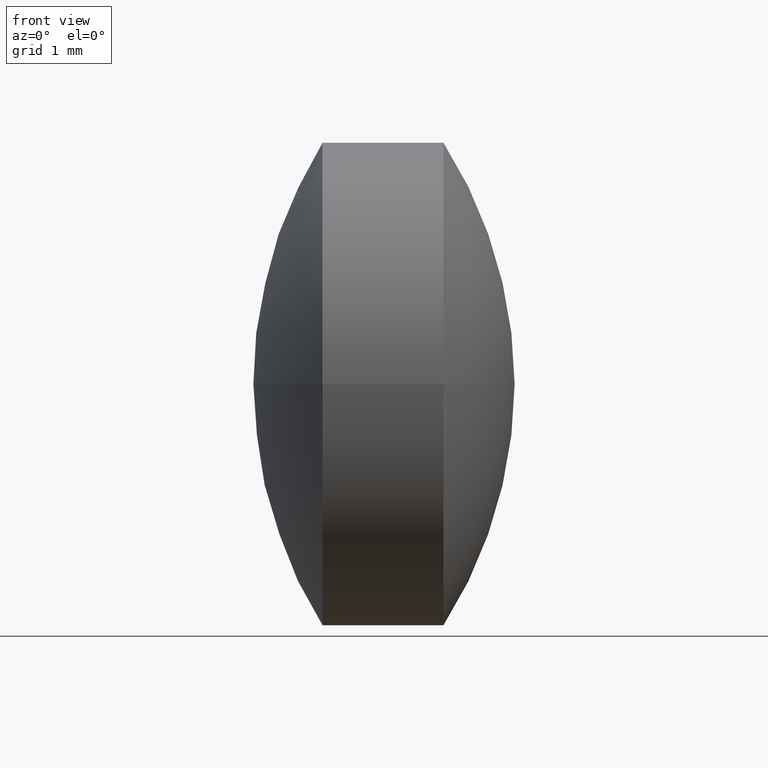
[diagram: clean part render]
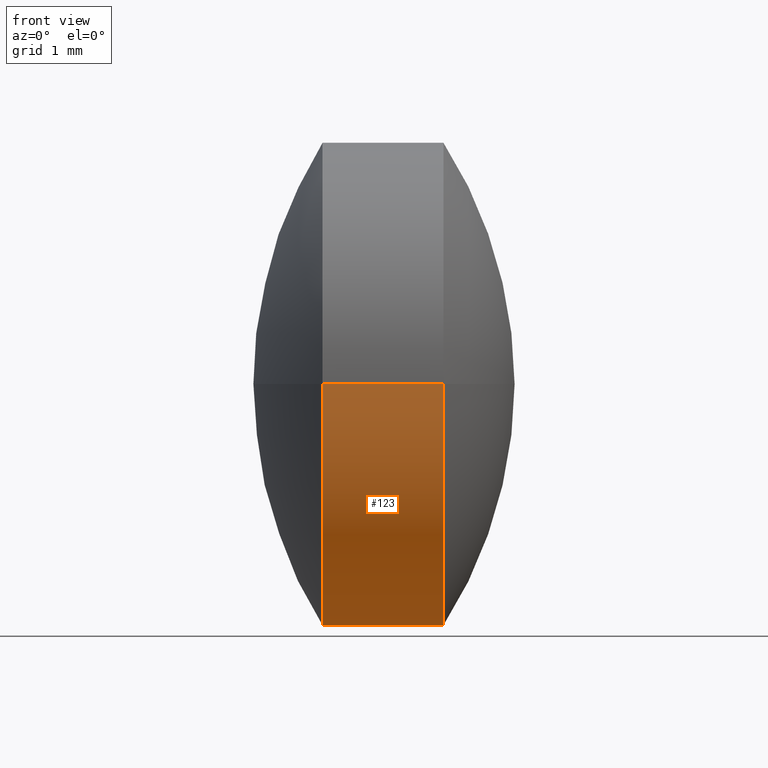
[diagram: same view with one face highlighted and labeled with its STEP entity id]
A machine part, front view. The second image highlights one B-rep face of the part: STEP entity #123.
In plain terms, the highlighted cylindrical surface (partial cylindrical patch) has radius 2 mm, axis along (-1, 0, -0).
Its self-contained STEP definition (entity closure, byte-faithful):
#9 = AXIS2_PLACEMENT_3D ( 'NONE', #20, #253, #107 ) ;
#11 = VERTEX_POINT ( 'NONE', #222 ) ;
#14 = DIRECTION ( 'NONE',  ( -1.000000000000000000, 5.782411586589156700E-014, -0.0000000000000000000 ) ) ;
#20 = CARTESIAN_POINT ( 'NONE',  ( 9.711656042240909100, 5.242101976729382600, 0.0000000000000000000 ) ) ;
#39 = VERTEX_POINT ( 'NONE', #149 ) ;
#44 = VERTEX_POINT ( 'NONE', #197 ) ;
#47 = DIRECTION ( 'NONE',  ( -5.811323644522123300E-014, -1.000000000000000000, 0.0000000000000000000 ) ) ;
#50 = CARTESIAN_POINT ( 'NONE',  ( 10.71165604224090900, 5.242101976729324900, 0.0000000000000000000 ) ) ;
#59 = LINE ( 'NONE', #277, #290 ) ;
#66 = CARTESIAN_POINT ( 'NONE',  ( 9.139926422987191000, 3.242101976729353700, 0.0000000000000000000 ) ) ;
#72 = DIRECTION ( 'NONE',  ( -1.000000000000000000, 5.782411586589156700E-014, -0.0000000000000000000 ) ) ;
#78 = AXIS2_PLACEMENT_3D ( 'NONE', #50, #159, #101 ) ;
#79 = ORIENTED_EDGE ( 'NONE', *, *, #183, .T. ) ;
#101 = DIRECTION ( 'NONE',  ( -5.811323644522038700E-014, -1.000000000000000000, 0.0000000000000000000 ) ) ;
#107 = DIRECTION ( 'NONE',  ( -5.811323644522207800E-014, -1.000000000000000000, 0.0000000000000000000 ) ) ;
#123 = ADVANCED_FACE ( 'NONE', ( #243 ), #240, .T. ) ;
#130 = EDGE_CURVE ( 'NONE', #39, #138, #59, .T. ) ;
#138 = VERTEX_POINT ( 'NONE', #178 ) ;
#149 = CARTESIAN_POINT ( 'NONE',  ( 10.71165604224102300, 7.242101976729364800, 2.449293598294755200E-016 ) ) ;
#151 = EDGE_CURVE ( 'NONE', #138, #11, #167, .T. ) ;
#155 = CARTESIAN_POINT ( 'NONE',  ( 9.139926422987308300, 5.242101976729416400, 0.0000000000000000000 ) ) ;
#159 = DIRECTION ( 'NONE',  ( -1.000000000000000000, 5.782411586589156700E-014, -0.0000000000000000000 ) ) ;
#167 = CIRCLE ( 'NONE', #9, 2.000000000000032900 ) ;
#178 = CARTESIAN_POINT ( 'NONE',  ( 9.711656042241026300, 7.242101976729417200, 0.0000000000000000000 ) ) ;
#179 = DIRECTION ( 'NONE',  ( -1.000000000000000000, 5.782411586589156700E-014, -0.0000000000000000000 ) ) ;
#183 = EDGE_CURVE ( 'NONE', #39, #44, #255, .T. ) ;
#184 = LINE ( 'NONE', #66, #303 ) ;
#187 = ORIENTED_EDGE ( 'NONE', *, *, #130, .F. ) ;
#197 = CARTESIAN_POINT ( 'NONE',  ( 10.71165604224079200, 3.242101976729284000, 0.0000000000000000000 ) ) ;
#217 = EDGE_CURVE ( 'NONE', #44, #11, #184, .T. ) ;
#222 = CARTESIAN_POINT ( 'NONE',  ( 9.711656042240793600, 3.242101976729567800, -2.449293598294747300E-016 ) ) ;
#229 = AXIS2_PLACEMENT_3D ( 'NONE', #155, #179, #47 ) ;
#240 = CYLINDRICAL_SURFACE ( 'NONE', #229, 2.000000000000062200 ) ;
#241 = EDGE_LOOP ( 'NONE', ( #187, #79, #301, #284 ) ) ;
#243 = FACE_OUTER_BOUND ( 'NONE', #241, .T. ) ;
#253 = DIRECTION ( 'NONE',  ( -1.000000000000000000, 5.782411586589156700E-014, -0.0000000000000000000 ) ) ;
#255 = CIRCLE ( 'NONE', #78, 2.000000000000091000 ) ;
#277 = CARTESIAN_POINT ( 'NONE',  ( 9.139926422987423700, 7.242101976729477600, 2.449293598294782300E-016 ) ) ;
#284 = ORIENTED_EDGE ( 'NONE', *, *, #151, .F. ) ;
#290 = VECTOR ( 'NONE', #72, 1000.000000000000000 ) ;
#301 = ORIENTED_EDGE ( 'NONE', *, *, #217, .T. ) ;
#303 = VECTOR ( 'NONE', #14, 1000.000000000000000 ) ;